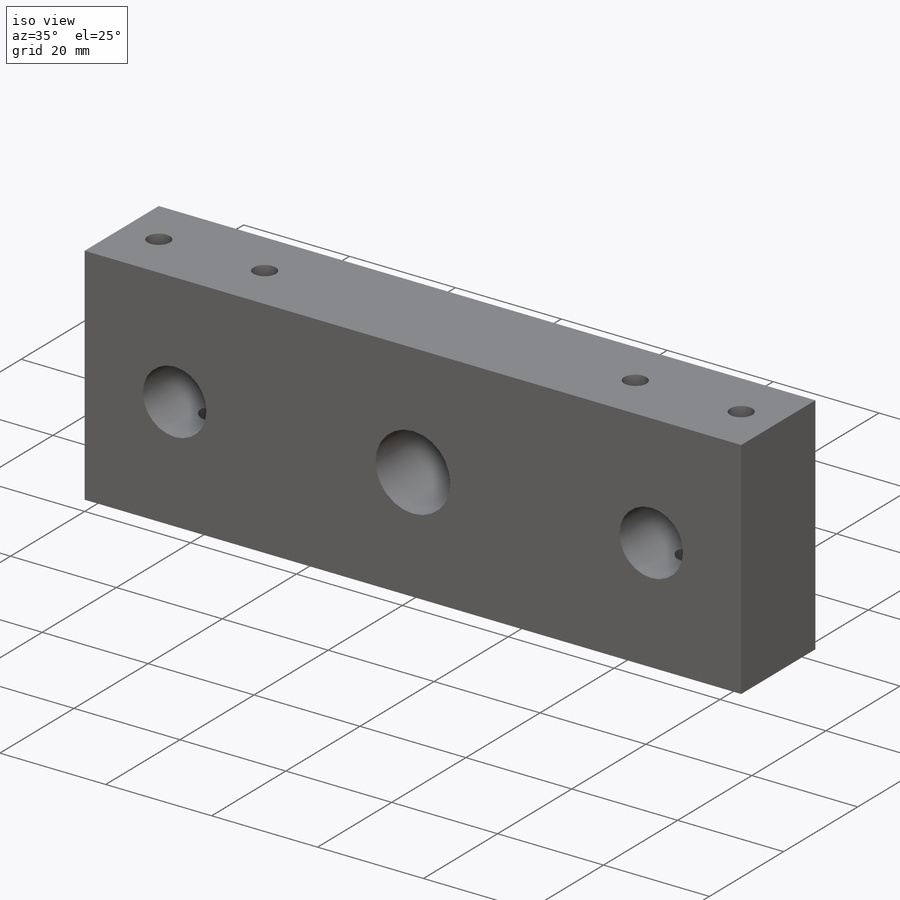
[diagram: iso view]
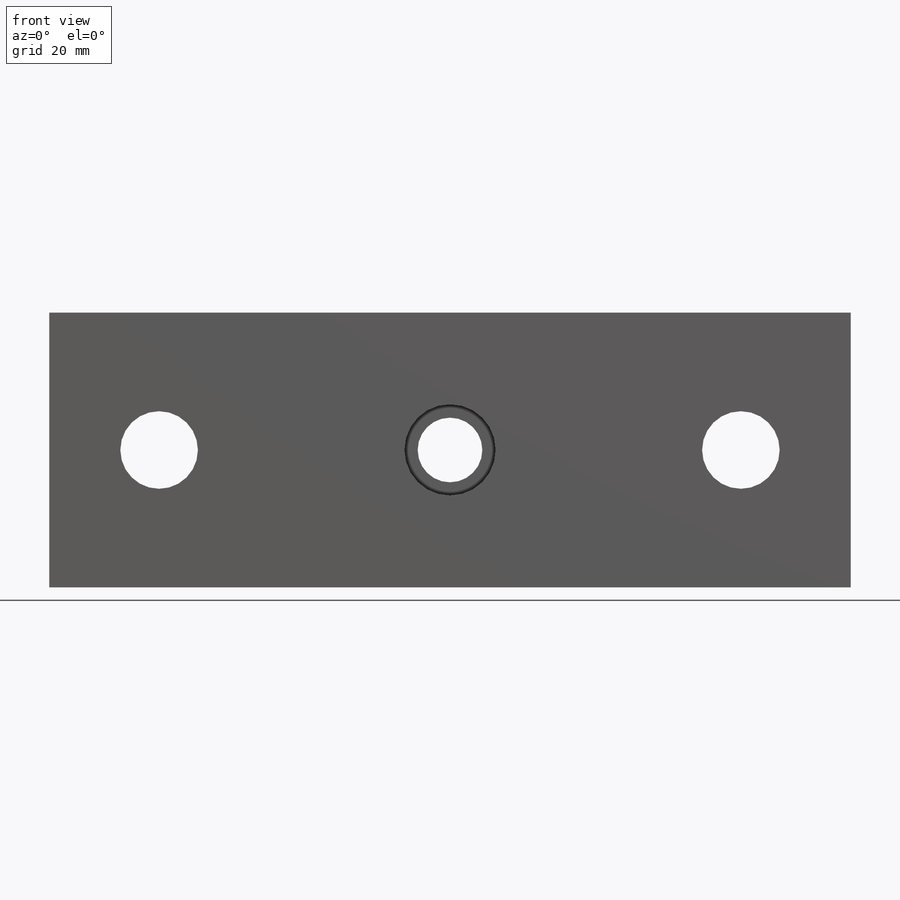
[diagram: front view]
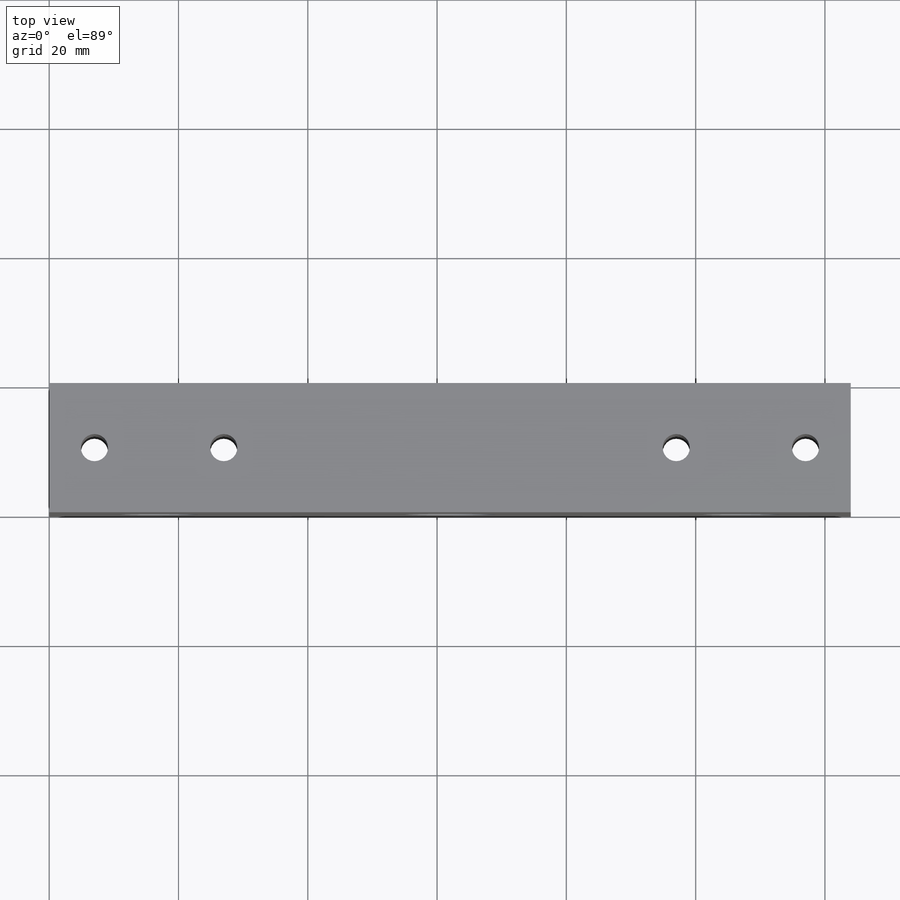
[diagram: top view]
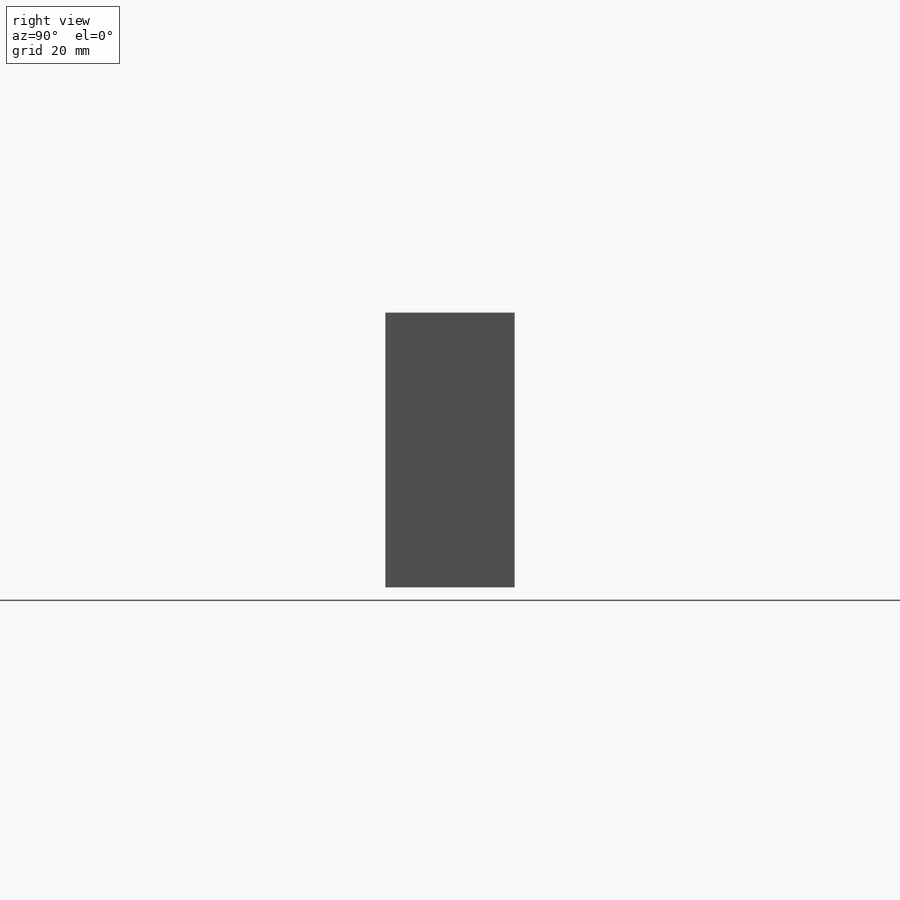
[diagram: right view]
SOLIDWORKS PART (.sldprt)
format: sldprt  version: not decoded by parser v0  size: 206,848 bytes
history: native  units: mm
features: sketch x3, cut_extrude x2, material x1, extrude x1 (+11 scaffold rows collapsed)
feature tree (18):
  scaffold x11  (default folders/planes/origin — collapsed)
  material  "6061 Alloy"
  sketch  "Sketch1"  dims[D5=12.0mm D6=10.0mm D1=42.5mm D2=124.0mm D3=17.0mm D4=17.0mm D7=~119.195447mm]
  extrude  "Boss-Extrude1"  Depth=20mm
  sketch  "Sketch2"  dims[c1.D1=4.2mm c1.D7=~4.299667mm c1.D2=7.0mm c1.D3=27.0mm c1.D4=7.0mm c1.D5=27.0mm c1.D6=17.0mm c2.D7=17.0mm]
  cut_extrude  "Cut-Extrude1"  [1 undecoded]
  sketch  "Sketch3"  dims[D1=14.1mm]
  cut_extrude  "Cut-Extrude2"  Depth=4mm
decode coverage: 5 of 6 modeling features carry decoded parameters
note: ~ marks probable driven/reference dimensions
note: 1 parameter value undecoded
note: suppression state not decoded; provenance and decode notes live in map.json
